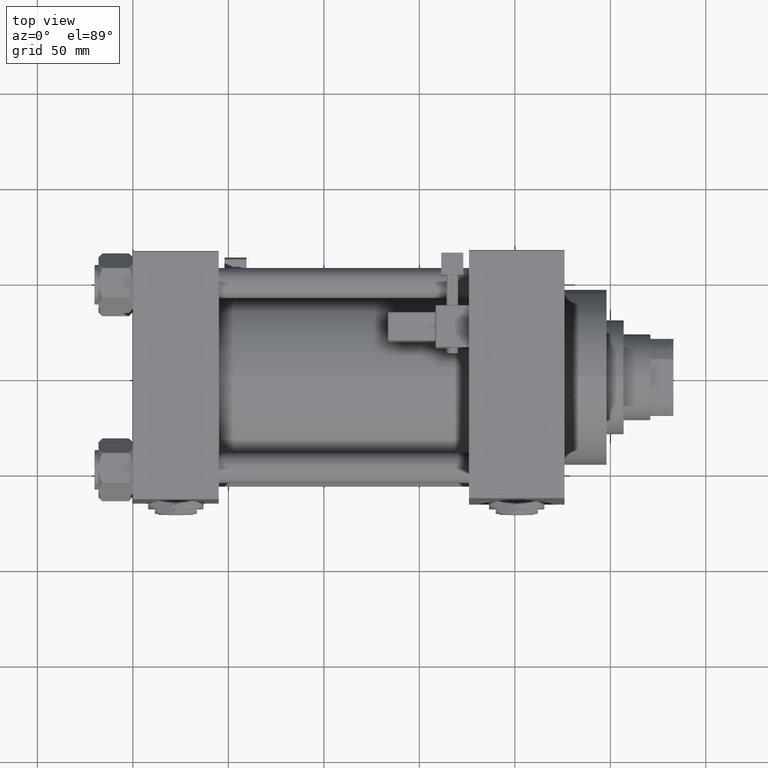
[diagram: clean part render]
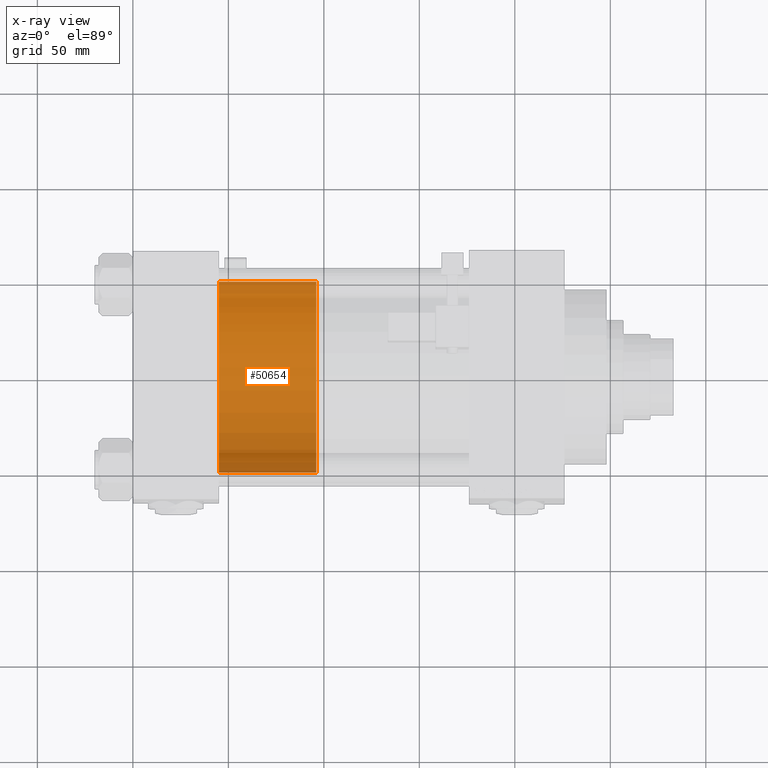
[diagram: x-ray — body ghosted, one internal face saturated and labeled with its STEP entity id]
A machine part, top view, then the same camera in x-ray: the body is ghosted and one INTERNAL B-rep face — a face not visible from any outside direction — is saturated and labeled: STEP entity #50654.
In plain terms, the highlighted cylindrical surface (partial cylindrical patch) has radius 50 mm, axis along (-1, 0, 0).
Its self-contained STEP definition (entity closure, byte-faithful):
#142 = CARTESIAN_POINT ( 'NONE',  ( 50.00000000000000000, 6.123233995736766085E-15, 0.000000000000000000 ) ) ;
#635 = DIRECTION ( 'NONE',  ( -0.000000000000000000, -0.000000000000000000, -1.000000000000000000 ) ) ;
#1000 = CYLINDRICAL_SURFACE ( 'NONE', #51877, 50.00000000000000000 ) ;
#4386 = CIRCLE ( 'NONE', #5252, 50.00000000000000000 ) ;
#4585 = DIRECTION ( 'NONE',  ( 0.000000000000000000, 0.000000000000000000, 1.000000000000000000 ) ) ;
#5252 = AXIS2_PLACEMENT_3D ( 'NONE', #48198, #36617, #25482 ) ;
#6264 = EDGE_CURVE ( 'NONE', #9325, #29435, #31937, .T. ) ;
#7659 = EDGE_CURVE ( 'NONE', #11095, #9325, #45542, .T. ) ;
#9325 = VERTEX_POINT ( 'NONE', #37993 ) ;
#11095 = VERTEX_POINT ( 'NONE', #16238 ) ;
#11454 = VERTEX_POINT ( 'NONE', #142 ) ;
#15131 = DIRECTION ( 'NONE',  ( -0.000000000000000000, -0.000000000000000000, -1.000000000000000000 ) ) ;
#16238 = CARTESIAN_POINT ( 'NONE',  ( 50.00000000000000000, 6.123233995736766085E-15, 51.00000000000000000 ) ) ;
#17538 = EDGE_CURVE ( 'NONE', #11454, #29435, #4386, .T. ) ;
#20701 = DIRECTION ( 'NONE',  ( -0.000000000000000000, -0.000000000000000000, -1.000000000000000000 ) ) ;
#20851 = DIRECTION ( 'NONE',  ( 1.000000000000000000, 0.000000000000000000, 0.000000000000000000 ) ) ;
#24046 = CARTESIAN_POINT ( 'NONE',  ( -50.00000000000000000, 0.000000000000000000, 51.00000000000000000 ) ) ;
#25482 = DIRECTION ( 'NONE',  ( 1.000000000000000000, 0.000000000000000000, 0.000000000000000000 ) ) ;
#26147 = VECTOR ( 'NONE', #15131, 1000.000000000000000 ) ;
#26652 = VECTOR ( 'NONE', #635, 1000.000000000000000 ) ;
#29435 = VERTEX_POINT ( 'NONE', #51770 ) ;
#30418 = AXIS2_PLACEMENT_3D ( 'NONE', #32426, #4585, #20851 ) ;
#31937 = LINE ( 'NONE', #24046, #26147 ) ;
#32012 = EDGE_CURVE ( 'NONE', #11095, #11454, #36132, .T. ) ;
#32174 = CARTESIAN_POINT ( 'NONE',  ( 50.00000000000000000, 6.123233995736766085E-15, 51.00000000000000000 ) ) ;
#32426 = CARTESIAN_POINT ( 'NONE',  ( 0.000000000000000000, 0.000000000000000000, 51.00000000000000000 ) ) ;
#36132 = LINE ( 'NONE', #32174, #26652 ) ;
#36617 = DIRECTION ( 'NONE',  ( 0.000000000000000000, 0.000000000000000000, 1.000000000000000000 ) ) ;
#36742 = DIRECTION ( 'NONE',  ( -1.000000000000000000, 0.000000000000000000, 0.000000000000000000 ) ) ;
#36993 = FACE_OUTER_BOUND ( 'NONE', #45319, .T. ) ;
#37993 = CARTESIAN_POINT ( 'NONE',  ( -50.00000000000000000, 0.000000000000000000, 51.00000000000000000 ) ) ;
#41726 = ORIENTED_EDGE ( 'NONE', *, *, #7659, .F. ) ;
#42283 = ORIENTED_EDGE ( 'NONE', *, *, #6264, .F. ) ;
#44954 = ORIENTED_EDGE ( 'NONE', *, *, #17538, .T. ) ;
#45319 = EDGE_LOOP ( 'NONE', ( #41726, #50962, #44954, #42283 ) ) ;
#45542 = CIRCLE ( 'NONE', #30418, 50.00000000000000000 ) ;
#48198 = CARTESIAN_POINT ( 'NONE',  ( 0.000000000000000000, 0.000000000000000000, 0.000000000000000000 ) ) ;
#49088 = CARTESIAN_POINT ( 'NONE',  ( 0.000000000000000000, 0.000000000000000000, 51.00000000000000000 ) ) ;
#50654 = ADVANCED_FACE ( 'NONE', ( #36993 ), #1000, .T. ) ;
#50962 = ORIENTED_EDGE ( 'NONE', *, *, #32012, .T. ) ;
#51770 = CARTESIAN_POINT ( 'NONE',  ( -50.00000000000000000, 0.000000000000000000, 0.000000000000000000 ) ) ;
#51877 = AXIS2_PLACEMENT_3D ( 'NONE', #49088, #20701, #36742 ) ;